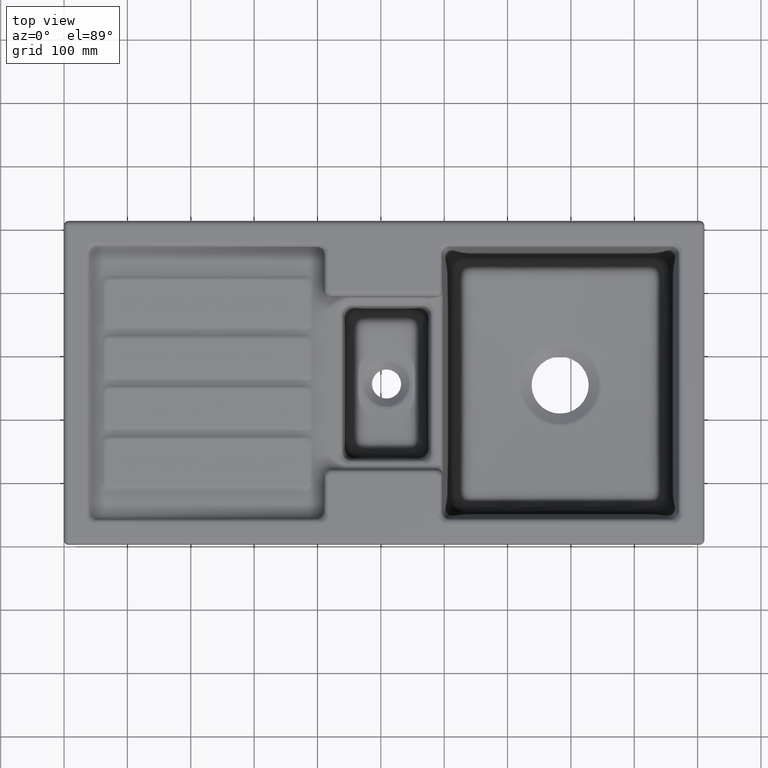
[diagram: clean part render]
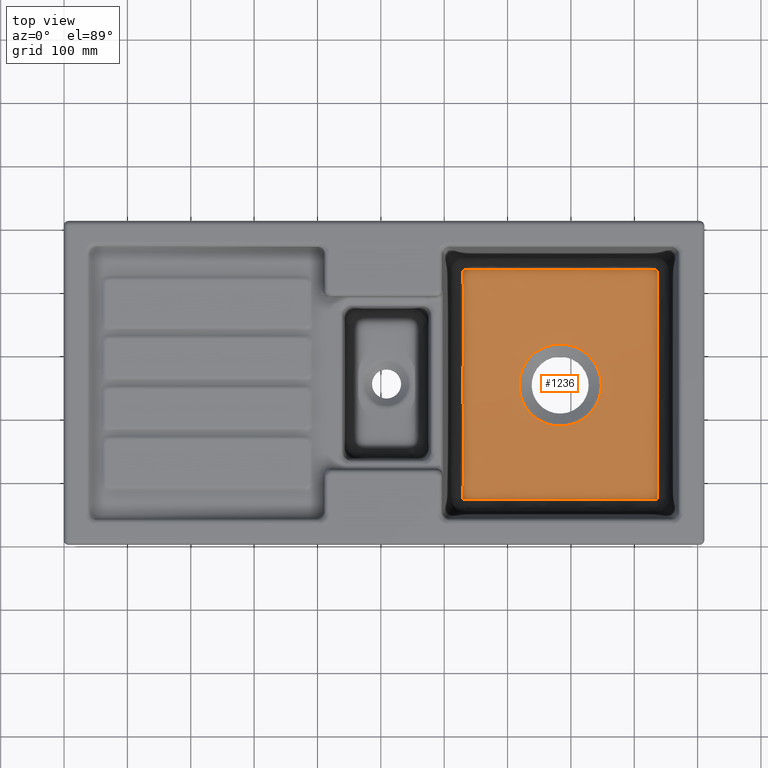
[diagram: same view with one face highlighted and labeled with its STEP entity id]
A machine part, top view. The second image highlights one B-rep face of the part: STEP entity #1236.
In plain terms, the highlighted conical surface has half-angle 86 deg.
Its self-contained STEP definition (entity closure, byte-faithful):
#820=(
BOUNDED_CURVE()
B_SPLINE_CURVE(3,(#14057,#14058,#14059,#14060,#14061,#14062,#14063,#14064,
#14065,#14066),.UNSPECIFIED.,.F.,.F.)
B_SPLINE_CURVE_WITH_KNOTS((4,2,2,2,4),(0.,0.25,0.5,0.75,1.),
 .UNSPECIFIED.)
CURVE()
GEOMETRIC_REPRESENTATION_ITEM()
RATIONAL_B_SPLINE_CURVE((1.,1.,1.,1.,1.,1.,1.,1.,1.,1.))
REPRESENTATION_ITEM('')
);
#959=CONICAL_SURFACE('',#6418,62.9999999999999,86.);
#1236=ADVANCED_FACE('',(#1612,#1613),#959,.F.);
#1612=FACE_BOUND('',#1871,.T.);
#1613=FACE_BOUND('',#1872,.T.);
#1871=EDGE_LOOP('',(#3017,#3018,#3019,#3020,#3021,#3022,#3023,#3024));
#1872=EDGE_LOOP('',(#3025));
#3017=ORIENTED_EDGE('',*,*,#5163,.F.);
#3018=ORIENTED_EDGE('',*,*,#5164,.T.);
#3019=ORIENTED_EDGE('',*,*,#5165,.T.);
#3020=ORIENTED_EDGE('',*,*,#5166,.T.);
#3021=ORIENTED_EDGE('',*,*,#5167,.T.);
#3022=ORIENTED_EDGE('',*,*,#5168,.T.);
#3023=ORIENTED_EDGE('',*,*,#5169,.T.);
#3024=ORIENTED_EDGE('',*,*,#5170,.T.);
#3025=ORIENTED_EDGE('',*,*,#4927,.F.);
#4246=VERTEX_POINT('',#10715);
#4377=VERTEX_POINT('',#14040);
#4380=VERTEX_POINT('',#14056);
#4381=VERTEX_POINT('',#14101);
#4382=VERTEX_POINT('',#14144);
#4383=VERTEX_POINT('',#14149);
#4384=VERTEX_POINT('',#14220);
#4385=VERTEX_POINT('',#14225);
#4386=VERTEX_POINT('',#14268);
#4927=EDGE_CURVE('',#4246,#4246,#5815,.T.);
#5163=EDGE_CURVE('',#4380,#4377,#820,.T.);
#5164=EDGE_CURVE('',#4380,#4381,#5981,.T.);
#5165=EDGE_CURVE('',#4381,#4382,#5982,.T.);
#5166=EDGE_CURVE('',#4382,#4383,#5983,.T.);
#5167=EDGE_CURVE('',#4383,#4384,#5984,.T.);
#5168=EDGE_CURVE('',#4384,#4385,#5985,.T.);
#5169=EDGE_CURVE('',#4385,#4386,#5986,.T.);
#5170=EDGE_CURVE('',#4386,#4377,#5987,.T.);
#5815=B_SPLINE_CURVE_WITH_KNOTS('',3,(#10681,#10682,#10683,#10684,#10685,
#10686,#10687,#10688,#10689,#10690,#10691,#10692,#10693,#10694,#10695,#10696,
#10697,#10698,#10699,#10700,#10701,#10702,#10703,#10704,#10705,#10706,#10707,
#10708,#10709,#10710,#10711,#10712,#10713,#10714),.UNSPECIFIED.,.T.,.F.,
(2,2,2,2,2,2,2,2,2,2,2,2,2,2,2,2,2,2,2),(-0.0625,0.,0.0625,0.125,0.1875,
0.25,0.3125,0.375,0.4375,0.5,0.5625,0.625,0.6875,0.75,0.8125,0.875,0.9375,
1.,1.0625),.UNSPECIFIED.);
#5981=B_SPLINE_CURVE_WITH_KNOTS('',3,(#14097,#14098,#14099,#14100),
 .UNSPECIFIED.,.F.,.F.,(4,4),(0.,1.),.UNSPECIFIED.);
#5982=B_SPLINE_CURVE_WITH_KNOTS('',3,(#14102,#14103,#14104,#14105,#14106,
#14107,#14108,#14109,#14110,#14111,#14112,#14113,#14114,#14115,#14116,#14117,
#14118,#14119,#14120,#14121,#14122,#14123,#14124,#14125,#14126,#14127,#14128,
#14129,#14130,#14131,#14132,#14133,#14134,#14135,#14136,#14137,#14138,#14139,
#14140,#14141,#14142,#14143),.UNSPECIFIED.,.F.,.F.,(4,2,2,2,2,2,2,2,2,2,
2,2,2,2,2,2,2,2,2,2,4),(0.,0.250000000000006,0.257812500000007,0.265625000000007,
0.281250000000007,0.312500000000008,0.375000000000009,0.390625000000009,
0.406250000000008,0.437500000000007,0.500000000000006,0.625000000000005,
0.656250000000004,0.687500000000004,0.750000000000004,0.757812500000004,
0.765625000000004,0.781250000000004,0.812500000000003,0.875000000000003,
1.),.UNSPECIFIED.);
#5983=B_SPLINE_CURVE_WITH_KNOTS('',3,(#14145,#14146,#14147,#14148),
 .UNSPECIFIED.,.F.,.F.,(4,4),(0.,1.),.UNSPECIFIED.);
#5984=B_SPLINE_CURVE_WITH_KNOTS('',3,(#14150,#14151,#14152,#14153,#14154,
#14155,#14156,#14157,#14158,#14159,#14160,#14161,#14162,#14163,#14164,#14165,
#14166,#14167,#14168,#14169,#14170,#14171,#14172,#14173,#14174,#14175,#14176,
#14177,#14178,#14179,#14180,#14181,#14182,#14183,#14184,#14185,#14186,#14187,
#14188,#14189,#14190,#14191,#14192,#14193,#14194,#14195,#14196,#14197,#14198,
#14199,#14200,#14201,#14202,#14203,#14204,#14205,#14206,#14207,#14208,#14209,
#14210,#14211,#14212,#14213,#14214,#14215,#14216,#14217,#14218,#14219),
 .UNSPECIFIED.,.F.,.F.,(4,2,2,1,2,2,2,2,2,1,2,2,2,2,2,2,2,2,2,2,2,2,2,2,
2,2,1,2,2,2,2,2,1,2,2,2,4),(0.,0.124999999999998,0.128906249999998,0.132812499999998,
0.140624999999998,0.156249999999998,0.187499999999997,0.249999999999995,
0.253906249999995,0.257812499999995,0.265624999999995,0.281249999999995,
0.312499999999995,0.374999999999995,0.382812499999995,0.390624999999995,
0.406249999999995,0.437499999999995,0.499999999999995,0.624999999999995,
0.632812499999995,0.640624999999995,0.656249999999995,0.687499999999994,
0.749999999999993,0.753906249999993,0.757812499999993,0.765624999999993,
0.781249999999993,0.812499999999995,0.874999999999997,0.878906249999997,
0.882812499999997,0.890624999999997,0.906249999999998,0.937499999999998,
1.),.UNSPECIFIED.);
#5985=B_SPLINE_CURVE_WITH_KNOTS('',3,(#14221,#14222,#14223,#14224),
 .UNSPECIFIED.,.F.,.F.,(4,4),(0.,1.),.UNSPECIFIED.);
#5986=B_SPLINE_CURVE_WITH_KNOTS('',3,(#14226,#14227,#14228,#14229,#14230,
#14231,#14232,#14233,#14234,#14235,#14236,#14237,#14238,#14239,#14240,#14241,
#14242,#14243,#14244,#14245,#14246,#14247,#14248,#14249,#14250,#14251,#14252,
#14253,#14254,#14255,#14256,#14257,#14258,#14259,#14260,#14261,#14262,#14263,
#14264,#14265,#14266,#14267),.UNSPECIFIED.,.F.,.F.,(4,2,2,2,2,2,2,2,2,2,
2,2,2,2,2,2,2,2,2,2,4),(0.,0.250000000000013,0.257812500000013,0.265625000000013,
0.281250000000013,0.312500000000013,0.375000000000013,0.390625000000013,
0.406250000000013,0.437500000000012,0.500000000000012,0.625000000000011,
0.65625000000001,0.687500000000009,0.750000000000009,0.757812500000008,
0.765625000000008,0.781250000000008,0.812500000000007,0.875000000000005,
1.),.UNSPECIFIED.);
#5987=B_SPLINE_CURVE_WITH_KNOTS('',3,(#14269,#14270,#14271,#14272),
 .UNSPECIFIED.,.F.,.F.,(4,4),(0.,1.),.UNSPECIFIED.);
#6418=AXIS2_PLACEMENT_3D('',#14273,#6752,#6753);
#6752=DIRECTION('',(0.,0.,1.));
#6753=DIRECTION('',(-1.,0.,3.86469235911955E-18));
#10681=CARTESIAN_POINT('',(847.915951514314,246.502521817577,-199.866023618765));
#10682=CARTESIAN_POINT('',(847.915951514315,263.497478182423,-199.866023618766));
#10683=CARTESIAN_POINT('',(846.226363054868,271.991612970041,-199.866023618765));
#10684=CARTESIAN_POINT('',(839.722674820273,287.692905311446,-199.866023618765));
#10685=CARTESIAN_POINT('',(834.911133968725,294.893885077172,-199.866023618765));
#10686=CARTESIAN_POINT('',(822.893885077173,306.911133968725,-199.866023618765));
#10687=CARTESIAN_POINT('',(815.692905311446,311.722674820273,-199.866023618765));
#10688=CARTESIAN_POINT('',(799.991612970042,318.226363054868,-199.866023618765));
#10689=CARTESIAN_POINT('',(791.497478182424,319.915951514314,-199.866023618765));
#10690=CARTESIAN_POINT('',(774.502521817577,319.915951514314,-199.866023618765));
#10691=CARTESIAN_POINT('',(766.008387029959,318.226363054868,-199.866023618765));
#10692=CARTESIAN_POINT('',(750.307094688554,311.722674820273,-199.866023618765));
#10693=CARTESIAN_POINT('',(743.106114922827,306.911133968725,-199.866023618765));
#10694=CARTESIAN_POINT('',(731.088866031275,294.893885077173,-199.866023618765));
#10695=CARTESIAN_POINT('',(726.277325179727,287.692905311446,-199.866023618765));
#10696=CARTESIAN_POINT('',(719.773636945133,271.991612970042,-199.866023618765));
#10697=CARTESIAN_POINT('',(718.084048485686,263.497478182423,-199.866023618765));
#10698=CARTESIAN_POINT('',(718.084048485685,246.502521817577,-199.866023618765));
#10699=CARTESIAN_POINT('',(719.773636945132,238.008387029959,-199.866023618765));
#10700=CARTESIAN_POINT('',(726.277325179727,222.307094688554,-199.866023618766));
#10701=CARTESIAN_POINT('',(731.088866031275,215.106114922827,-199.866023618765));
#10702=CARTESIAN_POINT('',(743.106114922827,203.088866031275,-199.866023618766));
#10703=CARTESIAN_POINT('',(750.307094688554,198.277325179727,-199.866023618765));
#10704=CARTESIAN_POINT('',(766.008387029958,191.773636945133,-199.866023618766));
#10705=CARTESIAN_POINT('',(774.502521817577,190.084048485685,-199.866023618765));
#10706=CARTESIAN_POINT('',(791.497478182423,190.084048485686,-199.866023618766));
#10707=CARTESIAN_POINT('',(799.991612970041,191.773636945132,-199.866023618765));
#10708=CARTESIAN_POINT('',(815.692905311446,198.277325179727,-199.866023618766));
#10709=CARTESIAN_POINT('',(822.893885077173,203.088866031275,-199.866023618765));
#10710=CARTESIAN_POINT('',(834.911133968725,215.106114922827,-199.866023618766));
#10711=CARTESIAN_POINT('',(839.722674820273,222.307094688554,-199.866023618765));
#10712=CARTESIAN_POINT('',(846.226363054868,238.008387029959,-199.866023618765));
#10713=CARTESIAN_POINT('',(847.915951514314,246.502521817577,-199.866023618765));
#10714=CARTESIAN_POINT('',(847.915951514315,263.497478182423,-199.866023618766));
#10715=CARTESIAN_POINT('',(847.915951514315,255.,-199.866023618766));
#14040=CARTESIAN_POINT('',(629.865072715363,434.512490970051,-187.905766995865));
#14056=CARTESIAN_POINT('',(629.865072715622,75.4875091776451,-187.905767003734));
#14057=CARTESIAN_POINT('',(629.865072715622,75.4875091776451,-187.905767003734));
#14058=CARTESIAN_POINT('',(629.917146106874,105.279695363091,-189.493061749814));
#14059=CARTESIAN_POINT('',(629.935028503632,135.107201465441,-190.929581993934));
#14060=CARTESIAN_POINT('',(629.915015819269,194.916192240341,-193.047885042656));
#14061=CARTESIAN_POINT('',(629.882201543377,224.913210455004,-193.697521886127));
#14062=CARTESIAN_POINT('',(629.882130299196,284.966180313849,-193.699170780309));
#14063=CARTESIAN_POINT('',(629.914958905416,315.000961947473,-193.050313295012));
#14064=CARTESIAN_POINT('',(629.935046901712,374.860705265151,-190.931223660807));
#14065=CARTESIAN_POINT('',(629.917171672874,404.705678729962,-189.493841002586));
#14066=CARTESIAN_POINT('',(629.865072715363,434.512490970051,-187.905766995865));
#14097=CARTESIAN_POINT('',(629.865072715622,75.4875091776452,-187.905767003734));
#14098=CARTESIAN_POINT('',(629.863359214276,74.5071821735436,-187.853536264662));
#14099=CARTESIAN_POINT('',(630.672154021115,73.6971904318876,-187.846767924148));
#14100=CARTESIAN_POINT('',(631.652506260077,73.6981920344997,-187.890753170787));
#14101=CARTESIAN_POINT('',(631.652506260077,73.6981920344997,-187.890753170787));
#14102=CARTESIAN_POINT('',(631.652506260077,73.6981920344997,-187.890753170787));
#14103=CARTESIAN_POINT('',(658.512995316908,73.725634758592,-189.095896780467));
#14104=CARTESIAN_POINT('',(683.294780921425,73.7263327179246,-190.021801057292));
#14105=CARTESIAN_POINT('',(708.053477556332,73.7225262671578,-190.68867428076));
#14106=CARTESIAN_POINT('',(708.906367316078,73.7224344414842,-190.711356680408));
#14107=CARTESIAN_POINT('',(710.505656845616,73.722317170513,-190.753268632552));
#14108=CARTESIAN_POINT('',(711.304040503902,73.7222837270639,-190.773898366289));
#14109=CARTESIAN_POINT('',(713.69565485102,73.7222207876968,-190.8348088405));
#14110=CARTESIAN_POINT('',(715.285347164053,73.7222269022173,-190.874110853971));
#14111=CARTESIAN_POINT('',(720.042309440192,73.7221451088796,-190.988101986374));
#14112=CARTESIAN_POINT('',(723.197438087545,73.7219237771744,-191.058876197297));
#14113=CARTESIAN_POINT('',(732.631568540074,73.7199056208422,-191.255539198026));
#14114=CARTESIAN_POINT('',(738.878953475802,73.7160642212061,-191.365768355795));
#14115=CARTESIAN_POINT('',(746.699227716456,73.714321158964,-191.477455416276));
#14116=CARTESIAN_POINT('',(748.316705011906,73.7143060031071,-191.499202272644));
#14117=CARTESIAN_POINT('',(751.485992777952,73.714548794053,-191.539023457192));
#14118=CARTESIAN_POINT('',(753.066878050548,73.7148001306955,-191.557513021493));
#14119=CARTESIAN_POINT('',(757.801224120892,73.7154727771808,-191.608718630482));
#14120=CARTESIAN_POINT('',(760.94636036387,73.7157493379263,-191.637171591253));
#14121=CARTESIAN_POINT('',(770.372835092789,73.7145164079166,-191.7054781379));
#14122=CARTESIAN_POINT('',(776.64515637646,73.7098476721103,-191.728279388111));
#14123=CARTESIAN_POINT('',(795.627047326363,73.7097435795909,-191.728473796082));
#14124=CARTESIAN_POINT('',(808.070737615145,73.7119482367895,-191.637626728008));
#14125=CARTESIAN_POINT('',(824.003315165041,73.7153252245211,-191.410346905398));
#14126=CARTESIAN_POINT('',(827.074026893307,73.7167841022071,-191.361285393451));
#14127=CARTESIAN_POINT('',(833.337167441448,73.7193958232723,-191.251097878075));
#14128=CARTESIAN_POINT('',(836.472894833826,73.7205433048861,-191.190780774085));
#14129=CARTESIAN_POINT('',(845.911087983297,73.7226099772821,-190.994159423209));
#14130=CARTESIAN_POINT('',(852.24501532066,73.7216973085828,-190.842185137415));
#14131=CARTESIAN_POINT('',(859.46764112858,73.7227348158352,-190.647709007538));
#14132=CARTESIAN_POINT('',(860.166963906163,73.722847952791,-190.628623668636));
#14133=CARTESIAN_POINT('',(861.670869115061,73.7231020487878,-190.587111158549));
#14134=CARTESIAN_POINT('',(862.42353094436,73.7232355541585,-190.566081999402));
#14135=CARTESIAN_POINT('',(864.683817950471,73.7236391964013,-190.50217580965));
#14136=CARTESIAN_POINT('',(866.193745929561,73.7239117011213,-190.458480066735));
#14137=CARTESIAN_POINT('',(870.734084462997,73.7246389494446,-190.324117988747));
#14138=CARTESIAN_POINT('',(873.775070208328,73.724994613528,-190.230176804433));
#14139=CARTESIAN_POINT('',(882.950324472013,73.7252545536757,-189.935253854522));
#14140=CARTESIAN_POINT('',(889.137210765043,73.7243088433211,-189.721172691958));
#14141=CARTESIAN_POINT('',(907.976425846672,73.7182843988088,-189.026531616396));
#14142=CARTESIAN_POINT('',(920.911696337851,73.7119190698246,-188.493574115526));
#14143=CARTESIAN_POINT('',(934.347493887558,73.698192034349,-187.890753164163));
#14144=CARTESIAN_POINT('',(934.347493887558,73.698192034349,-187.890753164163));
#14145=CARTESIAN_POINT('',(934.347493887558,73.698192034349,-187.890753164163));
#14146=CARTESIAN_POINT('',(935.327990814999,73.6971902839089,-187.846761425792));
#14147=CARTESIAN_POINT('',(936.136640524292,74.5073317444182,-187.853544233615));
#14148=CARTESIAN_POINT('',(936.134927284637,75.4875090299492,-187.905766995865));
#14149=CARTESIAN_POINT('',(936.134927284637,75.4875090299492,-187.905766995865));
#14150=CARTESIAN_POINT('',(936.134927284637,75.487509029949,-187.905766995865));
#14151=CARTESIAN_POINT('',(936.107287820424,91.3005769482375,-188.748269774215));
#14152=CARTESIAN_POINT('',(936.093976588751,106.216230730692,-189.495704424475));
#14153=CARTESIAN_POINT('',(936.087624387213,120.775279837414,-190.168457400463));
#14154=CARTESIAN_POINT('',(936.087404399141,121.313970205363,-190.193279051223));
#14155=CARTESIAN_POINT('',(936.087034720869,122.291477988403,-190.238165945694));
#14156=CARTESIAN_POINT('',(936.086521382926,123.755379136098,-190.305175077291));
#14157=CARTESIAN_POINT('',(936.086117192972,125.212247104201,-190.371220578565));
#14158=CARTESIAN_POINT('',(936.085421921317,128.116741982767,-190.502026740683));
#14159=CARTESIAN_POINT('',(936.085107363503,130.040747688275,-190.587517728186));
#14160=CARTESIAN_POINT('',(936.084422656782,135.776983078491,-190.838851328973));
#14161=CARTESIAN_POINT('',(936.084289378461,139.553382232994,-190.999554580533));
#14162=CARTESIAN_POINT('',(936.08430518793,150.750510796578,-191.461106888316));
#14163=CARTESIAN_POINT('',(936.084803841181,158.038279946092,-191.741398497643));
#14164=CARTESIAN_POINT('',(936.08719792616,165.635815935383,-192.010085282786));
#14165=CARTESIAN_POINT('',(936.08734856704,166.155211834629,-192.028351683705));
#14166=CARTESIAN_POINT('',(936.087604868972,167.119482629113,-192.062043931489));
#14167=CARTESIAN_POINT('',(936.087956399997,168.563864976082,-192.112203045022));
#14168=CARTESIAN_POINT('',(936.088229478492,170.002312357668,-192.161224384126));
#14169=CARTESIAN_POINT('',(936.088721914365,172.871672422306,-192.25775002976));
#14170=CARTESIAN_POINT('',(936.088980401682,174.774527668802,-192.320077750087));
#14171=CARTESIAN_POINT('',(936.089898525809,180.456154542292,-192.500992780774));
#14172=CARTESIAN_POINT('',(936.090748301136,184.207903531569,-192.613511960846));
#14173=CARTESIAN_POINT('',(936.095488871713,195.383872676841,-192.926796979896));
#14174=CARTESIAN_POINT('',(936.102974444817,202.727558236445,-193.103290297713));
#14175=CARTESIAN_POINT('',(936.106647997553,210.972696132612,-193.265436498513));
#14176=CARTESIAN_POINT('',(936.106830895307,211.962224817995,-193.284362509264));
#14177=CARTESIAN_POINT('',(936.106813872807,213.860476504094,-193.319547958098));
#14178=CARTESIAN_POINT('',(936.10663091547,214.807219279542,-193.336555080364));
#14179=CARTESIAN_POINT('',(936.105782785056,217.641077917653,-193.385819640713));
#14180=CARTESIAN_POINT('',(936.104829112862,219.521819041201,-193.416320272345));
#14181=CARTESIAN_POINT('',(936.102219919829,225.144975632927,-193.500794941439));
#14182=CARTESIAN_POINT('',(936.101005629777,228.868259911046,-193.547741753098));
#14183=CARTESIAN_POINT('',(936.103801202538,240.015721642286,-193.660473284865));
#14184=CARTESIAN_POINT('',(936.117778763715,247.41712785305,-193.698149101763));
#14185=CARTESIAN_POINT('',(936.117944714911,269.990134118168,-193.698740939618));
#14186=CARTESIAN_POINT('',(936.112918675073,284.571071049348,-193.549104181747));
#14187=CARTESIAN_POINT('',(936.105909714724,300.795072169355,-193.230706276091));
#14188=CARTESIAN_POINT('',(936.105432247055,301.674775458218,-193.212939348163));
#14189=CARTESIAN_POINT('',(936.104324349834,303.509810140258,-193.174923739419));
#14190=CARTESIAN_POINT('',(936.103710058437,304.427719479099,-193.155409470965));
#14191=CARTESIAN_POINT('',(936.10177832399,307.183202491566,-193.095347273356));
#14192=CARTESIAN_POINT('',(936.100377558643,309.022536031675,-193.053279951955));
#14193=CARTESIAN_POINT('',(936.096360705688,314.552032041711,-192.921000418764));
#14194=CARTESIAN_POINT('',(936.093997662645,318.253772277825,-192.824710637988));
#14195=CARTESIAN_POINT('',(936.08918882018,329.438031407512,-192.511531019712));
#14196=CARTESIAN_POINT('',(936.089487112388,337.000935347123,-192.270330906266));
#14197=CARTESIAN_POINT('',(936.086984249517,345.225902494786,-191.979616228137));
#14198=CARTESIAN_POINT('',(936.086865915012,345.637276817558,-191.964987568617));
#14199=CARTESIAN_POINT('',(936.086619757257,346.534086872611,-191.932936379088));
#14200=CARTESIAN_POINT('',(936.086269594109,347.880927375094,-191.884537928205));
#14201=CARTESIAN_POINT('',(936.085973551989,349.232745449718,-191.835174477553));
#14202=CARTESIAN_POINT('',(936.085444898003,351.943278452525,-191.735160909892));
#14203=CARTESIAN_POINT('',(936.085176798151,353.759499742609,-191.666769642973));
#14204=CARTESIAN_POINT('',(936.084557578475,359.237714530456,-191.456449176786));
#14205=CARTESIAN_POINT('',(936.084378005337,362.929311568696,-191.309373312084));
#14206=CARTESIAN_POINT('',(936.084286156473,374.136130991274,-190.84755905625));
#14207=CARTESIAN_POINT('',(936.084338931021,381.784103244922,-190.512234003388));
#14208=CARTESIAN_POINT('',(936.088050205292,390.126539127959,-190.126786697272));
#14209=CARTESIAN_POINT('',(936.088240662515,390.519548221539,-190.108571095431));
#14210=CARTESIAN_POINT('',(936.088694600639,391.405610415586,-190.067403330607));
#14211=CARTESIAN_POINT('',(936.08941936285,392.73702992553,-190.005372891338));
#14212=CARTESIAN_POINT('',(936.090263895865,394.075469713028,-189.942506075965));
#14213=CARTESIAN_POINT('',(936.092085135218,396.761815286481,-189.815657277082));
#14214=CARTESIAN_POINT('',(936.093473985464,398.565335469392,-189.729604520311));
#14215=CARTESIAN_POINT('',(936.09799779081,404.01454352621,-189.466985577447));
#14216=CARTESIAN_POINT('',(936.101461966163,407.698905047822,-189.285958718806));
#14217=CARTESIAN_POINT('',(936.112805697783,418.911887180628,-188.725035452684));
#14218=CARTESIAN_POINT('',(936.121098433365,426.600739745873,-188.327296355007));
#14219=CARTESIAN_POINT('',(936.134927284378,434.512490822355,-187.905767003734));
#14220=CARTESIAN_POINT('',(936.134927284378,434.512490822355,-187.905767003734));
#14221=CARTESIAN_POINT('',(936.134927284378,434.512490822355,-187.905767003734));
#14222=CARTESIAN_POINT('',(936.136640785725,435.49281782667,-187.853536264651));
#14223=CARTESIAN_POINT('',(935.32784597867,436.302809568113,-187.846767924157));
#14224=CARTESIAN_POINT('',(934.347493739923,436.3018079655,-187.890753170787));
#14225=CARTESIAN_POINT('',(934.347493739923,436.3018079655,-187.890753170787));
#14226=CARTESIAN_POINT('',(934.347493739923,436.3018079655,-187.890753170787));
#14227=CARTESIAN_POINT('',(907.487004683926,436.274365241409,-189.09589678043));
#14228=CARTESIAN_POINT('',(882.705219079272,436.273667282364,-190.021801057254));
#14229=CARTESIAN_POINT('',(857.946522443647,436.277473732833,-190.688674280762));
#14230=CARTESIAN_POINT('',(857.09363268411,436.277565558499,-190.711356680404));
#14231=CARTESIAN_POINT('',(855.494343154741,436.277682829458,-190.753268632544));
#14232=CARTESIAN_POINT('',(854.695959496533,436.277716272902,-190.77389836628));
#14233=CARTESIAN_POINT('',(852.304345149632,436.27777921226,-190.834808840487));
#14234=CARTESIAN_POINT('',(850.714652836718,436.277773097738,-190.874110853955));
#14235=CARTESIAN_POINT('',(845.957690560862,436.277854891085,-190.988101986352));
#14236=CARTESIAN_POINT('',(842.802561913598,436.27807622281,-191.058876197273));
#14237=CARTESIAN_POINT('',(833.368431461054,436.280094379201,-191.255539198002));
#14238=CARTESIAN_POINT('',(827.121046524935,436.283935778874,-191.365768355779));
#14239=CARTESIAN_POINT('',(819.300772283359,436.285678841016,-191.47745541628));
#14240=CARTESIAN_POINT('',(817.683294988842,436.285693996865,-191.499202272636));
#14241=CARTESIAN_POINT('',(814.514007223393,436.285451205923,-191.539023457177));
#14242=CARTESIAN_POINT('',(812.933121951044,436.285199869291,-191.557513021476));
#14243=CARTESIAN_POINT('',(808.198775881289,436.284527222853,-191.608718630458));
#14244=CARTESIAN_POINT('',(805.053639638501,436.28425066216,-191.637171591227));
#14245=CARTESIAN_POINT('',(795.627164909563,436.285483592292,-191.705478137874));
#14246=CARTESIAN_POINT('',(789.354843625091,436.290152328137,-191.728279388093));
#14247=CARTESIAN_POINT('',(770.372952670534,436.290256419915,-191.728473796116));
#14248=CARTESIAN_POINT('',(757.929262383621,436.288051762448,-191.637626728043));
#14249=CARTESIAN_POINT('',(741.996684835268,436.28467477567,-191.410346905389));
#14250=CARTESIAN_POINT('',(738.925973105147,436.283215898075,-191.361285393407));
#14251=CARTESIAN_POINT('',(732.66283255609,436.280604177083,-191.251097878006));
#14252=CARTESIAN_POINT('',(729.527105163468,436.279456695447,-191.190780774009));
#14253=CARTESIAN_POINT('',(720.088912013949,436.277390022911,-190.994159423133));
#14254=CARTESIAN_POINT('',(713.754984677462,436.278302691417,-190.842185137365));
#14255=CARTESIAN_POINT('',(706.532358871655,436.277265184165,-190.647709007544));
#14256=CARTESIAN_POINT('',(705.833036093837,436.277152047209,-190.628623668636));
#14257=CARTESIAN_POINT('',(704.329130884939,436.276897951212,-190.587111158549));
#14258=CARTESIAN_POINT('',(703.57646905564,436.276764445842,-190.566081999402));
#14259=CARTESIAN_POINT('',(701.31618204953,436.276360803599,-190.50217580965));
#14260=CARTESIAN_POINT('',(699.806254070439,436.276088298879,-190.458480066735));
#14261=CARTESIAN_POINT('',(695.265915537003,436.275361050556,-190.324117988747));
#14262=CARTESIAN_POINT('',(692.224929791672,436.275005386472,-190.230176804433));
#14263=CARTESIAN_POINT('',(683.049675527986,436.274745446325,-189.935253854522));
#14264=CARTESIAN_POINT('',(676.862789234956,436.275691156679,-189.721172691958));
#14265=CARTESIAN_POINT('',(658.023574153328,436.281715601191,-189.026531616396));
#14266=CARTESIAN_POINT('',(645.088303662149,436.288080930175,-188.493574115526));
#14267=CARTESIAN_POINT('',(631.652506112442,436.301807965651,-187.890753164163));
#14268=CARTESIAN_POINT('',(631.652506112442,436.301807965651,-187.890753164163));
#14269=CARTESIAN_POINT('',(631.652506112442,436.301807965651,-187.890753164163));
#14270=CARTESIAN_POINT('',(630.672009185497,436.302809716091,-187.846761425815));
#14271=CARTESIAN_POINT('',(629.863359475708,435.492668256079,-187.853544233588));
#14272=CARTESIAN_POINT('',(629.865072715363,434.512490970051,-187.905766995865));
#14273=CARTESIAN_POINT('',(783.,255.,-200.));